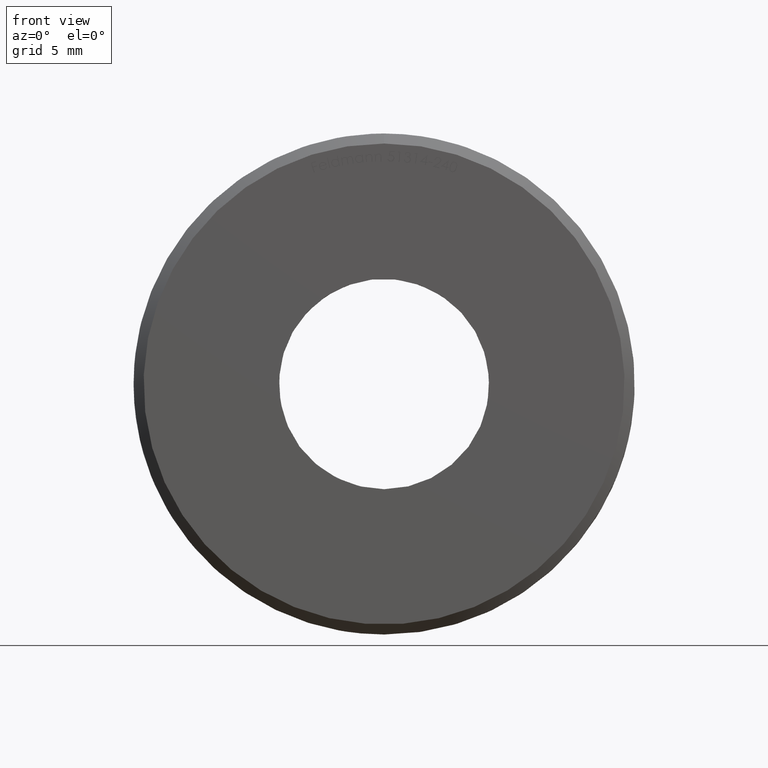
[diagram: clean part render]
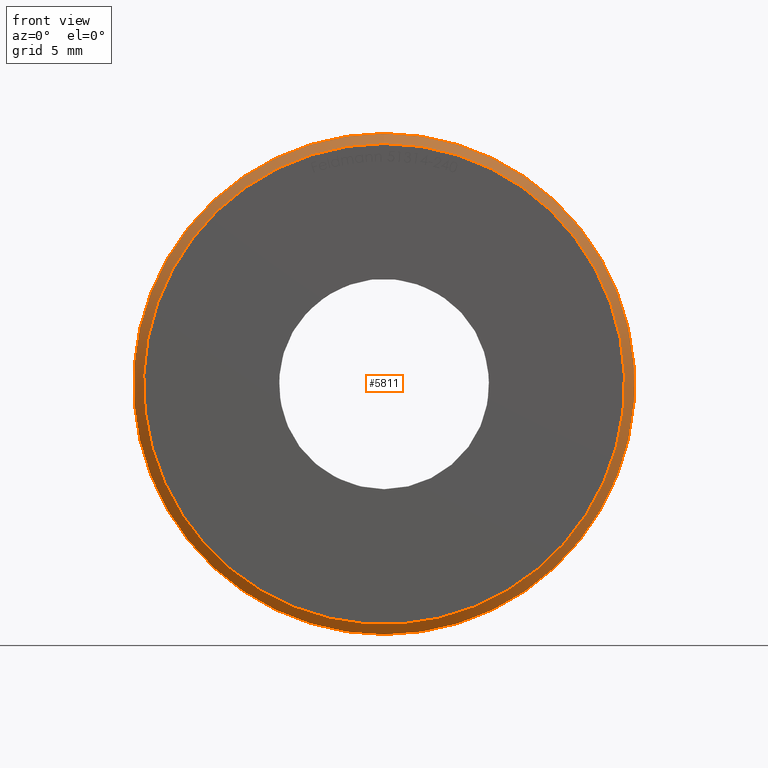
[diagram: same view with one face highlighted and labeled with its STEP entity id]
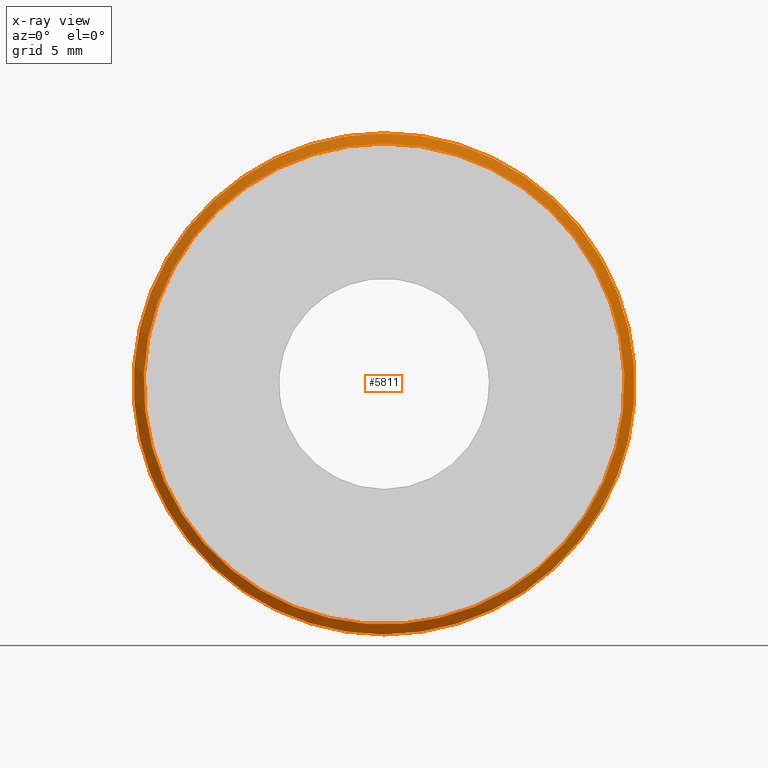
[diagram: x-ray of the same camera — body ghosted, the highlighted face saturated]
A machine part, front view. The second image highlights one B-rep face of the part: STEP entity #5811.
The next image is the same camera in x-ray: the body ghosted, the highlighted face saturated — about 0% of this face is hidden behind the body in this view.
In plain terms, the highlighted conical surface has half-angle 45 deg.
Its self-contained STEP definition (entity closure, byte-faithful):
#119 = EDGE_LOOP ( 'NONE', ( #7575 ) ) ;
#273 = CONICAL_SURFACE ( 'NONE', #554, 12.50000000000000000, 0.7853981633974500554 ) ;
#544 = FACE_OUTER_BOUND ( 'NONE', #8243, .T. ) ;
#554 = AXIS2_PLACEMENT_3D ( 'NONE', #3168, #9690, #5133 ) ;
#564 = ORIENTED_EDGE ( 'NONE', *, *, #6928, .F. ) ;
#936 = AXIS2_PLACEMENT_3D ( 'NONE', #6151, #1677, #4418 ) ;
#1023 = DIRECTION ( 'NONE',  ( -0.000000000000000000, 1.000000000000000000, -0.000000000000000000 ) ) ;
#1214 = VERTEX_POINT ( 'NONE', #8869 ) ;
#1677 = DIRECTION ( 'NONE',  ( -0.000000000000000000, -1.000000000000000000, -0.000000000000000000 ) ) ;
#3168 = CARTESIAN_POINT ( 'NONE',  ( 0.000000000000000000, 0.5000000000000056621, 0.000000000000000000 ) ) ;
#4418 = DIRECTION ( 'NONE',  ( 0.000000000000000000, 0.000000000000000000, 1.000000000000000000 ) ) ;
#5133 = DIRECTION ( 'NONE',  ( 0.000000000000000000, 0.000000000000000000, 1.000000000000000000 ) ) ;
#5811 = ADVANCED_FACE ( 'NONE', ( #6004, #544 ), #273, .T. ) ;
#5961 = CIRCLE ( 'NONE', #936, 11.99999999999999289 ) ;
#6004 = FACE_BOUND ( 'NONE', #119, .T. ) ;
#6151 = CARTESIAN_POINT ( 'NONE',  ( 0.000000000000000000, 0.000000000000000000, 0.000000000000000000 ) ) ;
#6558 = CIRCLE ( 'NONE', #10004, 12.50000000000000000 ) ;
#6807 = VERTEX_POINT ( 'NONE', #7214 ) ;
#6928 = EDGE_CURVE ( 'NONE', #6807, #6807, #6558, .T. ) ;
#7214 = CARTESIAN_POINT ( 'NONE',  ( 0.000000000000000000, 0.5000000000000056621, 12.50000000000000000 ) ) ;
#7575 = ORIENTED_EDGE ( 'NONE', *, *, #8930, .F. ) ;
#8243 = EDGE_LOOP ( 'NONE', ( #564 ) ) ;
#8869 = CARTESIAN_POINT ( 'NONE',  ( 0.000000000000000000, 0.000000000000000000, 11.99999999999999289 ) ) ;
#8930 = EDGE_CURVE ( 'NONE', #1214, #1214, #5961, .T. ) ;
#9057 = CARTESIAN_POINT ( 'NONE',  ( 0.000000000000000000, 0.5000000000000056621, 0.000000000000000000 ) ) ;
#9690 = DIRECTION ( 'NONE',  ( -0.000000000000000000, 1.000000000000000000, -0.000000000000000000 ) ) ;
#10004 = AXIS2_PLACEMENT_3D ( 'NONE', #9057, #1023, #11575 ) ;
#11575 = DIRECTION ( 'NONE',  ( 0.000000000000000000, 0.000000000000000000, 1.000000000000000000 ) ) ;